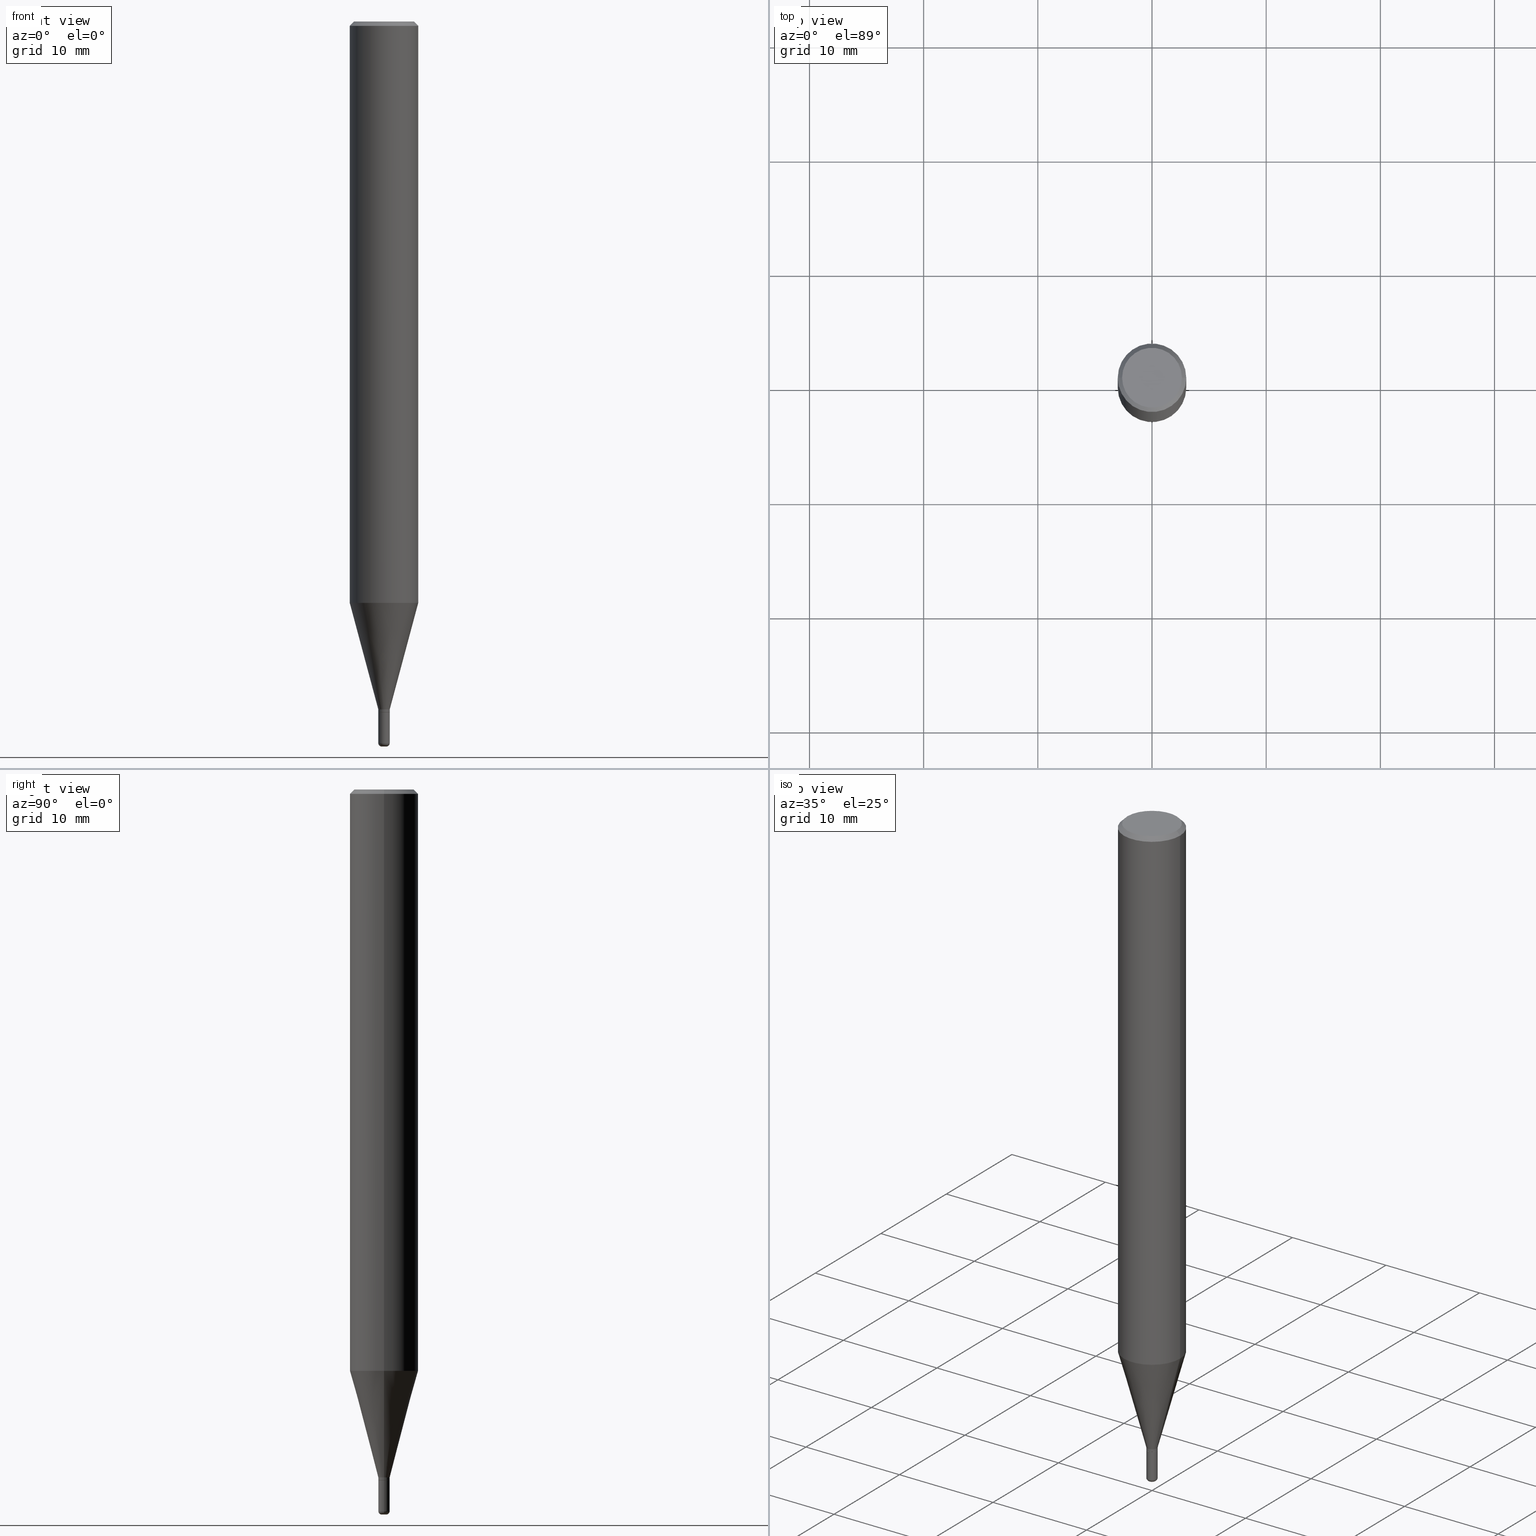
[diagram: canonical four-view strip — front | top / right | iso, engineering-drawing reading convention]
A machine part, canonical four-view strip (front | top / right | iso — engineering-drawing reading convention). The complete STEP part file that produces these views, byte-faithful:
ISO-10303-21;
HEADER;
FILE_DESCRIPTION (( 'STEP AP203' ),
    '1' );
FILE_NAME ('05327.STEP',
    '2024-02-29T19:36:34',
    ( '' ),
    ( '' ),
    'SwSTEP 2.0',
    'SolidWorks 2023',
    '' );
FILE_SCHEMA (( 'CONFIG_CONTROL_DESIGN' ));
ENDSEC;

DATA;
#1 = CC_DESIGN_SECURITY_CLASSIFICATION ( #506, ( #249 ) ) ;
#2 = ADVANCED_FACE ( 'NONE', ( #285 ), #448, .T. ) ;
#3 = DIRECTION ( 'NONE',  ( -2.445468806185136597E-29, 3.491481338843145583E-15, 1.000000000000000000 ) ) ;
#4 = LINE ( 'NONE', #131, #464 ) ;
#5 = AXIS2_PLACEMENT_3D ( 'NONE', #326, #3, #494 ) ;
#6 = EDGE_LOOP ( 'NONE', ( #104, #502 ) ) ;
#7 = CARTESIAN_POINT ( 'NONE',  ( 0.01919999999999998097, -8.450432284402065441E-15, -2.381899999999999906 ) ) ;
#8 = ADVANCED_FACE ( 'NONE', ( #48 ), #407, .T. ) ;
#9 = EDGE_LOOP ( 'NONE', ( #111, #498 ) ) ;
#10 = DIMENSIONAL_EXPONENTS ( 1.000000000000000000, 0.000000000000000000, 0.000000000000000000, 0.000000000000000000, 0.000000000000000000, 0.000000000000000000, 0.000000000000000000 ) ;
#11 = DIRECTION ( 'NONE',  ( 0.7071067811864253372, -2.468850131080976739E-15, 0.7071067811866698083 ) ) ;
#12 = APPLICATION_CONTEXT ( 'configuration controlled 3d designs of mechanical parts and assemblies' ) ;
#13 = CIRCLE ( 'NONE', #247, 0.01969999999999999876 ) ;
#14 = DIRECTION ( 'NONE',  ( -1.000000000000000000, 6.982962677686265922E-15, -4.876176775795935793E-29 ) ) ;
#15 = LINE ( 'NONE', #421, #270 ) ;
#16 = VECTOR ( 'NONE', #503, 39.37007874015748143 ) ;
#17 = LOCAL_TIME ( 14, 36, 34.00000000000000000, #400 ) ;
#18 = CARTESIAN_POINT ( 'NONE',  ( -0.007899999999999997302, -8.631370991184467837E-15, -2.488199999999999967 ) ) ;
#19 = DIRECTION ( 'NONE',  ( -2.445468806185136597E-29, 3.491481338843145583E-15, 1.000000000000000000 ) ) ;
#20 = ORIENTED_EDGE ( 'NONE', *, *, #487, .F. ) ;
#21 = ORIENTED_EDGE ( 'NONE', *, *, #26, .F. ) ;
#22 = FACE_OUTER_BOUND ( 'NONE', #266, .T. ) ;
#23 = UNCERTAINTY_MEASURE_WITH_UNIT (LENGTH_MEASURE( 1.000000000000000082E-05 ), #113, 'distance_accuracy_value', 'NONE');
#24 = DIRECTION ( 'NONE',  ( -1.000000000000000000, 7.105427357601039724E-15, 0.000000000000000000 ) ) ;
#25 = DIRECTION ( 'NONE',  ( -2.445468806185136597E-29, 3.491481338843145583E-15, 1.000000000000000000 ) ) ;
#26 = EDGE_CURVE ( 'NONE', #192, #330, #4, .T. ) ;
#27 = ORIENTED_EDGE ( 'NONE', *, *, #203, .F. ) ;
#28 = ORIENTED_EDGE ( 'NONE', *, *, #515, .F. ) ;
#29 = DIRECTION ( 'NONE',  ( 0.7071067811865483499, -7.319954787623257623E-15, -0.7071067811865466846 ) ) ;
#30 = ORIENTED_EDGE ( 'NONE', *, *, #186, .F. ) ;
#31 = DIRECTION ( 'NONE',  ( 1.000000000000000000, -6.982962677686258822E-15, 0.000000000000000000 ) ) ;
#32 = DIRECTION ( 'NONE',  ( -2.445468806185136597E-29, 3.491481338843145583E-15, 1.000000000000000000 ) ) ;
#33 = ORIENTED_EDGE ( 'NONE', *, *, #427, .F. ) ;
#34 = EDGE_LOOP ( 'NONE', ( #250, #20 ) ) ;
#35 = ORIENTED_EDGE ( 'NONE', *, *, #42, .F. ) ;
#36 = DATE_AND_TIME ( #314, #17 ) ;
#37 = CIRCLE ( 'NONE', #122, 0.01970000000000033877 ) ;
#38 = CC_DESIGN_APPROVAL ( #501, ( #249 ) ) ;
#39 = CARTESIAN_POINT ( 'NONE',  ( 0.01970000000000016877, -1.375643647504206195E-16, 9.606068248318075544E-31 ) ) ;
#40 = CALENDAR_DATE ( 2024, 29, 2 ) ;
#41 = ADVANCED_FACE ( 'NONE', ( #452 ), #319, .T. ) ;
#42 = EDGE_CURVE ( 'NONE', #142, #303, #482, .T. ) ;
#43 = DIRECTION ( 'NONE',  ( -2.445468806185136877E-29, 3.491481338843145188E-15, 1.000000000000000000 ) ) ;
#44 = PERSON_AND_ORGANIZATION_ROLE ( 'design_owner' ) ;
#45 = CONICAL_SURFACE ( 'NONE', #5, 0.01969999999999997101, 0.2617993877991492968 ) ;
#46 = ADVANCED_FACE ( 'NONE', ( #451 ), #255, .F. ) ;
#47 = APPROVAL_ROLE ( '' ) ;
#48 = FACE_OUTER_BOUND ( 'NONE', #415, .T. ) ;
#49 = CARTESIAN_POINT ( 'NONE',  ( 6.084815483549856310E-29, -8.687503867309514303E-15, -2.488199999999999967 ) ) ;
#50 = AXIS2_PLACEMENT_3D ( 'NONE', #253, #60, #339 ) ;
#51 = AXIS2_PLACEMENT_3D ( 'NONE', #350, #497, #137 ) ;
#52 = APPROVAL ( #267, 'UNSPECIFIED' ) ;
#53 = CARTESIAN_POINT ( 'NONE',  ( 3.668203209277694140E-31, -5.237222008264703607E-17, -0.01499999999999995781 ) ) ;
#54 = DIRECTION ( 'NONE',  ( 2.438088387897960049E-29, -3.491481338843145188E-15, -1.000000000000000000 ) ) ;
#55 = DIRECTION ( 'NONE',  ( 1.000000000000000000, -6.982962677686306154E-15, 4.883557194083126914E-29 ) ) ;
#56 = DIRECTION ( 'NONE',  ( -1.000000000000000000, 6.982962677686265922E-15, -4.876176775795935793E-29 ) ) ;
#57 = ORIENTED_EDGE ( 'NONE', *, *, #239, .T. ) ;
#58 = CIRCLE ( 'NONE', #417, 0.007900000000000000772 ) ;
#59 = CC_DESIGN_PERSON_AND_ORGANIZATION_ASSIGNMENT ( #308, #479, ( #249 ) ) ;
#60 = DIRECTION ( 'NONE',  ( -2.445468806185136597E-29, 3.491481338843145583E-15, 1.000000000000000000 ) ) ;
#61 = LOCAL_TIME ( 14, 36, 34.00000000000000000, #191 ) ;
#62 = DIRECTION ( 'NONE',  ( -2.445468806185136597E-29, 3.491481338843145583E-15, 1.000000000000000000 ) ) ;
#63 = CARTESIAN_POINT ( 'NONE',  ( -0.1180999999999999966, -2.686662453997805181E-15, -0.01499999999999995781 ) ) ;
#64 = ORIENTED_EDGE ( 'NONE', *, *, #203, .T. ) ;
#65 = ORIENTED_EDGE ( 'NONE', *, *, #469, .T. ) ;
#66 = CARTESIAN_POINT ( 'NONE',  ( 0.1180999999999999966, -8.246878922347480654E-16, 5.758764772215000440E-30 ) ) ;
#67 = DIRECTION ( 'NONE',  ( -0.7071067811864253372, 7.493145998869912398E-15, 0.7071067811866698083 ) ) ;
#68 = CARTESIAN_POINT ( 'NONE',  ( 5.823639415049284810E-29, -8.314613660321066941E-15, -2.381399999999999739 ) ) ;
#69 = CARTESIAN_POINT ( 'NONE',  ( 6.113672015462842613E-29, -8.728703347107866520E-15, -2.500000000000000444 ) ) ;
#70 = ORIENTED_EDGE ( 'NONE', *, *, #434, .T. ) ;
#71 = CARTESIAN_POINT ( 'NONE',  ( -0.1031000000000000111, 7.461295621107775452E-16, -5.126375781645864005E-30 ) ) ;
#72 = DIRECTION ( 'NONE',  ( 1.000000000000000000, -6.982962677686267499E-15, 4.876176775795936353E-29 ) ) ;
#73 = ORIENTED_EDGE ( 'NONE', *, *, #469, .F. ) ;
#74 = ORIENTED_EDGE ( 'NONE', *, *, #515, .T. ) ;
#75 = DIRECTION ( 'NONE',  ( 0.000000000000000000, 0.000000000000000000, 1.000000000000000000 ) ) ;
#76 = ORIENTED_EDGE ( 'NONE', *, *, #373, .T. ) ;
#77 = ORIENTED_EDGE ( 'NONE', *, *, #99, .F. ) ;
#78 = APPLICATION_PROTOCOL_DEFINITION ( 'international standard', 'config_control_design', 1994, #240 ) ;
#79 = DIRECTION ( 'NONE',  ( 1.000000000000000000, -6.982962677686266711E-15, 0.000000000000000000 ) ) ;
#80 = DIRECTION ( 'NONE',  ( -1.000000000000000000, 6.982962677686266711E-15, 0.000000000000000000 ) ) ;
#81 = EDGE_CURVE ( 'NONE', #210, #424, #241, .T. ) ;
#82 = COORDINATED_UNIVERSAL_TIME_OFFSET ( 5, 0, .BEHIND. ) ;
#83 = AXIS2_PLACEMENT_3D ( 'NONE', #512, #399, #80 ) ;
#84 = LINE ( 'NONE', #39, #304 ) ;
#85 = DIRECTION ( 'NONE',  ( 1.000000000000000000, 0.000000000000000000, 0.000000000000000000 ) ) ;
#86 = TOROIDAL_SURFACE ( 'NONE', #511, 0.007899999999999997302, 0.01180000000000033973 ) ;
#87 = AXIS2_PLACEMENT_3D ( 'NONE', #398, #311, #79 ) ;
#88 = DIRECTION ( 'NONE',  ( -2.445468806185136597E-29, 3.491481338843145583E-15, 1.000000000000000000 ) ) ;
#89 = APPROVAL_DATE_TIME ( #244, #199 ) ;
#90 = ADVANCED_FACE ( 'NONE', ( #345 ), #180, .T. ) ;
#91 = EDGE_CURVE ( 'NONE', #499, #301, #395, .T. ) ;
#92 = AXIS2_PLACEMENT_3D ( 'NONE', #248, #167, #204 ) ;
#93 = CIRCLE ( 'NONE', #386, 0.1180999999999999966 ) ;
#94 = VERTEX_POINT ( 'NONE', #462 ) ;
#95 = LINE ( 'NONE', #302, #403 ) ;
#96 = CYLINDRICAL_SURFACE ( 'NONE', #50, 0.01969999999999997448 ) ;
#97 = DIRECTION ( 'NONE',  ( 1.000000000000000000, -6.982962677686288799E-15, 0.000000000000000000 ) ) ;
#98 = ORIENTED_EDGE ( 'NONE', *, *, #450, .F. ) ;
#99 = EDGE_CURVE ( 'NONE', #499, #383, #229, .T. ) ;
#100 = VERTEX_POINT ( 'NONE', #63 ) ;
#101 = DIRECTION ( 'NONE',  ( -2.445468806185136597E-29, 3.491481338843145583E-15, 1.000000000000000000 ) ) ;
#102 = DIRECTION ( 'NONE',  ( 1.000000000000000000, -6.982962677686369262E-15, 0.000000000000000000 ) ) ;
#103 = CARTESIAN_POINT ( 'NONE',  ( 0.007899999999999997302, -8.742669272463236971E-15, -2.488199999999999967 ) ) ;
#104 = ORIENTED_EDGE ( 'NONE', *, *, #91, .F. ) ;
#105 = ORIENTED_EDGE ( 'NONE', *, *, #477, .T. ) ;
#106 = PLANE ( 'NONE',  #466 ) ;
#107 = LOCAL_TIME ( 14, 36, 34.00000000000000000, #82 ) ;
#108 = CARTESIAN_POINT ( 'NONE',  ( -0.01919999999999998097, -8.177285968550438833E-15, -2.381899999999999906 ) ) ;
#109 = EDGE_LOOP ( 'NONE', ( #98, #35, #105, #74 ) ) ;
#110 = DIRECTION ( 'NONE',  ( -2.445468806185136597E-29, 3.491481338843145583E-15, 1.000000000000000000 ) ) ;
#111 = ORIENTED_EDGE ( 'NONE', *, *, #42, .T. ) ;
#112 = EDGE_LOOP ( 'NONE', ( #297, #139, #57, #221 ) ) ;
#113 =( CONVERSION_BASED_UNIT ( 'INCH', #196 ) LENGTH_UNIT ( ) NAMED_UNIT ( #10 ) );
#114 = ADVANCED_FACE ( 'NONE', ( #146 ), #165, .F. ) ;
#115 = ORIENTED_EDGE ( 'NONE', *, *, #449, .T. ) ;
#116 = ORIENTED_EDGE ( 'NONE', *, *, #99, .T. ) ;
#117 = AXIS2_PLACEMENT_3D ( 'NONE', #53, #298, #340 ) ;
#118 = APPROVAL_STATUS ( 'not_yet_approved' ) ;
#119 = EDGE_CURVE ( 'NONE', #94, #383, #37, .T. ) ;
#120 = FACE_OUTER_BOUND ( 'NONE', #109, .T. ) ;
#121 = PERSON_AND_ORGANIZATION ( #342, #195 ) ;
#122 = AXIS2_PLACEMENT_3D ( 'NONE', #445, #211, #140 ) ;
#123 = AXIS2_PLACEMENT_3D ( 'NONE', #392, #75, #85 ) ;
#124 = CARTESIAN_POINT ( 'NONE',  ( 6.199188644380781470E-29, -8.606238667193129794E-15, -2.500000000000000000 ) ) ;
#125 = DIRECTION ( 'NONE',  ( 1.000000000000000000, -6.982962677686258822E-15, 0.000000000000000000 ) ) ;
#126 = APPROVAL_STATUS ( 'not_yet_approved' ) ;
#127 = VERTEX_POINT ( 'NONE', #384 ) ;
#128 = VERTEX_POINT ( 'NONE', #425 ) ;
#129 = AXIS2_PLACEMENT_3D ( 'NONE', #155, #321, #404 ) ;
#130 = DIRECTION ( 'NONE',  ( -2.438088387897960049E-29, 3.491481338843145188E-15, 1.000000000000000000 ) ) ;
#131 = CARTESIAN_POINT ( 'NONE',  ( 0.01969999999999997448, -1.375643647504192883E-16, 9.606068248317982708E-31 ) ) ;
#132 = PRODUCT_RELATED_PRODUCT_CATEGORY ( 'detail', '', ( #209 ) ) ;
#133 = DIRECTION ( 'NONE',  ( 0.2588190451025205729, 1.565188264969627490E-15, 0.9659258262890682012 ) ) ;
#134 = CIRCLE ( 'NONE', #205, 0.1180999999999999966 ) ;
#135 = DIRECTION ( 'NONE',  ( -2.445468806185136877E-29, 3.491481338843145188E-15, 1.000000000000000000 ) ) ;
#136 = EDGE_LOOP ( 'NONE', ( #307, #428, #27, #21 ) ) ;
#137 = DIRECTION ( 'NONE',  ( 1.000000000000000000, -6.982962677686266711E-15, 4.876176775795936353E-29 ) ) ;
#138 = ORIENTED_EDGE ( 'NONE', *, *, #119, .F. ) ;
#139 = ORIENTED_EDGE ( 'NONE', *, *, #450, .T. ) ;
#140 = DIRECTION ( 'NONE',  ( 1.000000000000000000, -6.982962677686306154E-15, 0.000000000000000000 ) ) ;
#141 = CYLINDRICAL_SURFACE ( 'NONE', #51, 0.1180999999999999966 ) ;
#142 = VERTEX_POINT ( 'NONE', #71 ) ;
#143 = AXIS2_PLACEMENT_3D ( 'NONE', #103, #258, #418 ) ;
#144 = AXIS2_PLACEMENT_3D ( 'NONE', #145, #62, #457 ) ;
#145 = CARTESIAN_POINT ( 'NONE',  ( 6.084815483549856310E-29, -8.687503867309514303E-15, -2.488199999999999967 ) ) ;
#146 = FACE_OUTER_BOUND ( 'NONE', #6, .T. ) ;
#147 = CC_DESIGN_PERSON_AND_ORGANIZATION_ASSIGNMENT ( #194, #44, ( #209 ) ) ;
#148 = CARTESIAN_POINT ( 'NONE',  ( 0.000000000000000000, 0.000000000000000000, 0.000000000000000000 ) ) ;
#149 = EDGE_LOOP ( 'NONE', ( #187, #76, #116, #138 ) ) ;
#150 = AXIS2_PLACEMENT_3D ( 'NONE', #379, #32, #423 ) ;
#151 =( LENGTH_UNIT ( ) NAMED_UNIT ( * ) SI_UNIT ( $, .METRE. ) );
#152 = CC_DESIGN_PERSON_AND_ORGANIZATION_ASSIGNMENT ( #315, #277, ( #249 ) ) ;
#153 = AXIS2_PLACEMENT_3D ( 'NONE', #372, #257, #416 ) ;
#154 = EDGE_LOOP ( 'NONE', ( #228, #65, #309, #30 ) ) ;
#155 = CARTESIAN_POINT ( 'NONE',  ( 5.824862149452377611E-29, -8.316359400990489234E-15, -2.381899999999999906 ) ) ;
#156 = CARTESIAN_POINT ( 'NONE',  ( -0.01969999999999997448, 1.399769189447395553E-16, -9.690302127802151991E-31 ) ) ;
#157 = CARTESIAN_POINT ( 'NONE',  ( 0.01969999999999997101, -8.419008952352476799E-15, -2.371900000000000119 ) ) ;
#158 = DATE_TIME_ROLE ( 'classification_date' ) ;
#159 = AXIS2_PLACEMENT_3D ( 'NONE', #49, #161, #325 ) ;
#160 = AXIS2_PLACEMENT_3D ( 'NONE', #124, #442, #318 ) ;
#161 = DIRECTION ( 'NONE',  ( -2.445468806185136597E-29, 3.491481338843145583E-15, 1.000000000000000000 ) ) ;
#162 = ADVANCED_FACE ( 'NONE', ( #168 ), #106, .F. ) ;
#163 = CARTESIAN_POINT ( 'NONE',  ( 1.375643647504776887E-16, 0.01969999999999168250, -2.381899999999999906 ) ) ;
#164 = PRODUCT_DEFINITION_SHAPE ( 'NONE', 'NONE',  #243 ) ;
#165 = PLANE ( 'NONE',  #160 ) ;
#166 = CARTESIAN_POINT ( 'NONE',  ( -0.01969999999999998141, -8.174636741376326844E-15, -2.381399999999999739 ) ) ;
#167 = DIRECTION ( 'NONE',  ( -2.445468806185136597E-29, 3.491481338843145583E-15, 1.000000000000000000 ) ) ;
#168 = FACE_OUTER_BOUND ( 'NONE', #9, .T. ) ;
#169 = DIRECTION ( 'NONE',  ( 1.000000000000000000, -6.982962677686265133E-15, 0.000000000000000000 ) ) ;
#170 = ORIENTED_EDGE ( 'NONE', *, *, #185, .F. ) ;
#171 = AXIS2_PLACEMENT_3D ( 'NONE', #341, #25, #215 ) ;
#172 = CIRCLE ( 'NONE', #476, 0.01919999999999998097 ) ;
#173 = LINE ( 'NONE', #331, #489 ) ;
#174 = DIRECTION ( 'NONE',  ( 1.000000000000000000, -6.982962677686278543E-15, 0.000000000000000000 ) ) ;
#175 = DESIGN_CONTEXT ( 'detailed design', #240, 'design' ) ;
#176 = LINE ( 'NONE', #336, #402 ) ;
#177 = ORIENTED_EDGE ( 'NONE', *, *, #352, .F. ) ;
#178 = ORIENTED_EDGE ( 'NONE', *, *, #281, .F. ) ;
#179 = CARTESIAN_POINT ( 'NONE',  ( 6.084815483549856310E-29, -8.687503867309514303E-15, -2.488199999999999967 ) ) ;
#180 = CYLINDRICAL_SURFACE ( 'NONE', #504, 0.01970000000000016877 ) ;
#181 = ORIENTED_EDGE ( 'NONE', *, *, #185, .T. ) ;
#182 = ORIENTED_EDGE ( 'NONE', *, *, #487, .T. ) ;
#183 = DIRECTION ( 'NONE',  ( -2.445468806185136597E-29, 3.491481338843145583E-15, 1.000000000000000000 ) ) ;
#184 = EDGE_LOOP ( 'NONE', ( #73, #226, #432, #28 ) ) ;
#185 = EDGE_CURVE ( 'NONE', #94, #210, #173, .T. ) ;
#186 = EDGE_CURVE ( 'NONE', #474, #127, #222, .T. ) ;
#187 = ORIENTED_EDGE ( 'NONE', *, *, #410, .F. ) ;
#188 = CC_DESIGN_APPROVAL ( #52, ( #243 ) ) ;
#189 = FACE_OUTER_BOUND ( 'NONE', #463, .T. ) ;
#190 = ORIENTED_EDGE ( 'NONE', *, *, #327, .T. ) ;
#191 = COORDINATED_UNIVERSAL_TIME_OFFSET ( 5, 0, .BEHIND. ) ;
#192 = VERTEX_POINT ( 'NONE', #381 ) ;
#193 = EDGE_CURVE ( 'NONE', #424, #210, #13, .T. ) ;
#194 = PERSON_AND_ORGANIZATION ( #342, #195 ) ;
#195 = ORGANIZATION ( 'UNSPECIFIED', 'UNSPECIFIED', '' ) ;
#196 = LENGTH_MEASURE_WITH_UNIT ( LENGTH_MEASURE( 0.02539999999999999897 ), #151 );
#197 = CARTESIAN_POINT ( 'NONE',  ( -0.007900000000000000772, -8.610048709673797919E-15, -2.500000000000000444 ) ) ;
#198 = DATE_AND_TIME ( #272, #61 ) ;
#199 = APPROVAL ( #126, 'UNSPECIFIED' ) ;
#200 = CONICAL_SURFACE ( 'NONE', #117, 0.1180999999999999966, 0.7853981633974495002 ) ;
#201 = CALENDAR_DATE ( 2024, 29, 2 ) ;
#202 = EDGE_LOOP ( 'NONE', ( #429, #182, #115, #265 ) ) ;
#203 = EDGE_CURVE ( 'NONE', #330, #368, #446, .T. ) ;
#204 = DIRECTION ( 'NONE',  ( 1.000000000000000000, -6.982962677686258822E-15, 0.000000000000000000 ) ) ;
#205 = AXIS2_PLACEMENT_3D ( 'NONE', #238, #518, #397 ) ;
#206 = DIRECTION ( 'NONE',  ( -2.445468806185136877E-29, 3.491481338843145188E-15, 1.000000000000000000 ) ) ;
#207 = AXIS2_PLACEMENT_3D ( 'NONE', #148, #513, #231 ) ;
#208 = CARTESIAN_POINT ( 'NONE',  ( 5.800407461390526066E-29, -8.281444587602057585E-15, -2.371900000000000119 ) ) ;
#209 = PRODUCT ( '05327', '05327', '', ( #271 ) ) ;
#210 = VERTEX_POINT ( 'NONE', #496 ) ;
#211 = DIRECTION ( 'NONE',  ( -2.445468806185136597E-29, 3.491481338843145583E-15, 1.000000000000000000 ) ) ;
#212 = CARTESIAN_POINT ( 'NONE',  ( 6.113672015462842613E-29, -8.728703347107866520E-15, -2.500000000000000444 ) ) ;
#213 = DIRECTION ( 'NONE',  ( 1.000000000000000000, -6.982962677686266711E-15, 0.000000000000000000 ) ) ;
#214 = DIRECTION ( 'NONE',  ( 7.105427357601001859E-15, 1.000000000000000000, -3.491481338843145583E-15 ) ) ;
#215 = DIRECTION ( 'NONE',  ( 1.000000000000000000, -6.982962677686278543E-15, 0.000000000000000000 ) ) ;
#216 = AXIS2_PLACEMENT_3D ( 'NONE', #219, #412, #213 ) ;
#217 = CIRCLE ( 'NONE', #388, 0.01969999999999998141 ) ;
#218 = ORIENTED_EDGE ( 'NONE', *, *, #280, .F. ) ;
#219 = CARTESIAN_POINT ( 'NONE',  ( 3.668203209277694140E-31, -5.237222008264703607E-17, -0.01499999999999995781 ) ) ;
#220 = FACE_OUTER_BOUND ( 'NONE', #136, .T. ) ;
#221 = ORIENTED_EDGE ( 'NONE', *, *, #477, .F. ) ;
#222 = LINE ( 'NONE', #66, #363 ) ;
#223 = CARTESIAN_POINT ( 'NONE',  ( 0.01970000000000033877, -8.825068232059938251E-15, -2.488199999999999967 ) ) ;
#224 = DIRECTION ( 'NONE',  ( -2.445468806185136597E-29, 3.491481338843145583E-15, 1.000000000000000000 ) ) ;
#225 = CC_DESIGN_DATE_AND_TIME_ASSIGNMENT ( #36, #478, ( #243 ) ) ;
#226 = ORIENTED_EDGE ( 'NONE', *, *, #276, .T. ) ;
#227 = CARTESIAN_POINT ( 'NONE',  ( 0.1180999999999999966, -7.823942522013067545E-15, -2.004666200535222487 ) ) ;
#228 = ORIENTED_EDGE ( 'NONE', *, *, #427, .T. ) ;
#229 = CIRCLE ( 'NONE', #143, 0.01180000000000034147 ) ;
#230 = ADVANCED_FACE ( 'NONE', ( #458 ), #96, .T. ) ;
#231 = DIRECTION ( 'NONE',  ( 1.000000000000000000, -6.982962677686265922E-15, 4.876176775795935232E-29 ) ) ;
#232 = EDGE_LOOP ( 'NONE', ( #64, #296, #33, #268 ) ) ;
#233 = CALENDAR_DATE ( 2024, 29, 2 ) ;
#234 =( NAMED_UNIT ( * ) SI_UNIT ( $, .STERADIAN. ) SOLID_ANGLE_UNIT ( ) );
#235 = CONICAL_SURFACE ( 'NONE', #83, 0.1180999999999999966, 0.7853981633974495002 ) ;
#236 = DIRECTION ( 'NONE',  ( -0.2588190451025205729, 5.211531920934544731E-15, 0.9659258262890682012 ) ) ;
#237 = DATE_AND_TIME ( #233, #283 ) ;
#238 = CARTESIAN_POINT ( 'NONE',  ( 4.902348660222563893E-29, -6.999254629778320071E-15, -2.004666200535222487 ) ) ;
#239 = EDGE_CURVE ( 'NONE', #127, #100, #347, .T. ) ;
#240 = APPLICATION_CONTEXT ( 'configuration controlled 3d designs of mechanical parts and assemblies' ) ;
#241 = CIRCLE ( 'NONE', #171, 0.01969999999999999876 ) ;
#242 = MANIFOLD_SOLID_BREP ( 'Body-Move/Copy2[2]', #401 ) ;
#243 = PRODUCT_DEFINITION ( 'UNKNOWN', '', #249, #175 ) ;
#244 = DATE_AND_TIME ( #201, #484 ) ;
#245 = DIRECTION ( 'NONE',  ( 1.000000000000000000, -6.982962677686266711E-15, 4.876176775795936353E-29 ) ) ;
#246 = DIRECTION ( 'NONE',  ( -2.445468806185136597E-29, 3.491481338843145583E-15, 1.000000000000000000 ) ) ;
#247 = AXIS2_PLACEMENT_3D ( 'NONE', #294, #101, #174 ) ;
#248 = CARTESIAN_POINT ( 'NONE',  ( 5.824862149452377611E-29, -8.316359400990489234E-15, -2.381899999999999906 ) ) ;
#249 = PRODUCT_DEFINITION_FORMATION_WITH_SPECIFIED_SOURCE ( 'ANY', '', #209, .NOT_KNOWN. ) ;
#250 = ORIENTED_EDGE ( 'NONE', *, *, #327, .F. ) ;
#251 = CARTESIAN_POINT ( 'NONE',  ( -0.1180999999999999966, 7.723156721521010848E-16, -0.01499999999999995781 ) ) ;
#252 = DIRECTION ( 'NONE',  ( -2.445468806185136877E-29, 3.491481338843145188E-15, 1.000000000000000000 ) ) ;
#253 = CARTESIAN_POINT ( 'NONE',  ( 0.000000000000000000, 0.000000000000000000, 0.000000000000000000 ) ) ;
#254 = CYLINDRICAL_SURFACE ( 'NONE', #282, 0.01969999999999997448 ) ;
#255 = PLANE ( 'NONE',  #455 ) ;
#256 = ORIENTED_EDGE ( 'NONE', *, *, #337, .T. ) ;
#257 = DIRECTION ( 'NONE',  ( -2.445468806185136597E-29, 3.491481338843145583E-15, 1.000000000000000000 ) ) ;
#258 = DIRECTION ( 'NONE',  ( -6.982962677686266711E-15, -1.000000000000000000, 3.491481338843145583E-15 ) ) ;
#259 = CIRCLE ( 'NONE', #293, 0.01180000000000034147 ) ;
#260 = ORIENTED_EDGE ( 'NONE', *, *, #410, .T. ) ;
#261 = EDGE_CURVE ( 'NONE', #471, #351, #15, .T. ) ;
#262 = ADVANCED_FACE ( 'NONE', ( #22 ), #491, .T. ) ;
#263 = FACE_OUTER_BOUND ( 'NONE', #112, .T. ) ;
#264 = DIRECTION ( 'NONE',  ( -2.445468806185136597E-29, 3.491481338843145583E-15, 1.000000000000000000 ) ) ;
#265 = ORIENTED_EDGE ( 'NONE', *, *, #486, .F. ) ;
#266 = EDGE_LOOP ( 'NONE', ( #377, #181, #509, #178 ) ) ;
#267 = APPROVAL_STATUS ( 'not_yet_approved' ) ;
#268 = ORIENTED_EDGE ( 'NONE', *, *, #337, .F. ) ;
#269 = ORIENTED_EDGE ( 'NONE', *, *, #449, .F. ) ;
#270 = VECTOR ( 'NONE', #67, 39.37007874015748143 ) ;
#271 = MECHANICAL_CONTEXT ( 'NONE', #12, 'mechanical' ) ;
#272 = CALENDAR_DATE ( 2024, 29, 2 ) ;
#273 = DIRECTION ( 'NONE',  ( -2.445468806185136597E-29, 3.491481338843145583E-15, 1.000000000000000000 ) ) ;
#274 = PERSON_AND_ORGANIZATION ( #342, #195 ) ;
#275 = AXIS2_PLACEMENT_3D ( 'NONE', #69, #224, #505 ) ;
#276 = EDGE_CURVE ( 'NONE', #128, #474, #134, .T. ) ;
#277 = PERSON_AND_ORGANIZATION_ROLE ( 'creator' ) ;
#278 = EDGE_CURVE ( 'NONE', #192, #351, #375, .T. ) ;
#279 = DIRECTION ( 'NONE',  ( 1.000000000000000000, -6.982962677686265922E-15, 4.876176775795935793E-29 ) ) ;
#280 = EDGE_CURVE ( 'NONE', #368, #128, #441, .T. ) ;
#281 = EDGE_CURVE ( 'NONE', #383, #424, #84, .T. ) ;
#282 = AXIS2_PLACEMENT_3D ( 'NONE', #411, #183, #72 ) ;
#283 = LOCAL_TIME ( 14, 36, 34.00000000000000000, #355 ) ;
#284 = ORIENTED_EDGE ( 'NONE', *, *, #486, .T. ) ;
#285 = FACE_OUTER_BOUND ( 'NONE', #184, .T. ) ;
#286 = CARTESIAN_POINT ( 'NONE',  ( 0.000000000000000000, 0.000000000000000000, 0.000000000000000000 ) ) ;
#287 = CARTESIAN_POINT ( 'NONE',  ( 0.01969999999999997101, -8.419008952352476799E-15, -2.371900000000000119 ) ) ;
#288 = ORIENTED_EDGE ( 'NONE', *, *, #261, .T. ) ;
#289 = PERSON_AND_ORGANIZATION ( #342, #195 ) ;
#290 = DIRECTION ( 'NONE',  ( -2.445468806185136597E-29, 3.491481338843145583E-15, 1.000000000000000000 ) ) ;
#291 = ADVANCED_FACE ( 'NONE', ( #516 ), #483, .T. ) ;
#292 = FACE_OUTER_BOUND ( 'NONE', #232, .T. ) ;
#293 = AXIS2_PLACEMENT_3D ( 'NONE', #18, #214, #24 ) ;
#294 = CARTESIAN_POINT ( 'NONE',  ( 5.824862149452377611E-29, -8.316359400990489234E-15, -2.381899999999999906 ) ) ;
#295 = CARTESIAN_POINT ( 'NONE',  ( 5.800407461390526066E-29, -8.281444587602057585E-15, -2.371900000000000119 ) ) ;
#296 = ORIENTED_EDGE ( 'NONE', *, *, #280, .T. ) ;
#297 = ORIENTED_EDGE ( 'NONE', *, *, #514, .F. ) ;
#298 = DIRECTION ( 'NONE',  ( 2.445468806185136597E-29, -3.491481338843145583E-15, -1.000000000000000000 ) ) ;
#299 = DIRECTION ( 'NONE',  ( 1.000000000000000000, -6.982962677686265922E-15, 4.876176775795935793E-29 ) ) ;
#300 = ADVANCED_FACE ( 'NONE', ( #120 ), #235, .T. ) ;
#301 = VERTEX_POINT ( 'NONE', #197 ) ;
#302 = CARTESIAN_POINT ( 'NONE',  ( -0.1180999999999999966, 8.391509709326782957E-16, -5.809262341591043784E-30 ) ) ;
#303 = VERTEX_POINT ( 'NONE', #361 ) ;
#304 = VECTOR ( 'NONE', #43, 39.37007874015748143 ) ;
#305 = EDGE_LOOP ( 'NONE', ( #190, #288, #310, #269 ) ) ;
#306 = DIRECTION ( 'NONE',  ( 1.000000000000000000, -6.982962677686284854E-15, 0.000000000000000000 ) ) ;
#307 = ORIENTED_EDGE ( 'NONE', *, *, #278, .T. ) ;
#308 = PERSON_AND_ORGANIZATION ( #342, #195 ) ;
#309 = ORIENTED_EDGE ( 'NONE', *, *, #239, .F. ) ;
#310 = ORIENTED_EDGE ( 'NONE', *, *, #278, .F. ) ;
#311 = DIRECTION ( 'NONE',  ( -2.445468806185136597E-29, 3.491481338843145583E-15, 1.000000000000000000 ) ) ;
#312 = AXIS2_PLACEMENT_3D ( 'NONE', #485, #273, #480 ) ;
#313 = CIRCLE ( 'NONE', #87, 0.1180999999999999966 ) ;
#314 = CALENDAR_DATE ( 2024, 29, 2 ) ;
#315 = PERSON_AND_ORGANIZATION ( #342, #195 ) ;
#316 = ADVANCED_FACE ( 'NONE', ( #292 ), #45, .T. ) ;
#317 = DIRECTION ( 'NONE',  ( 1.000000000000000000, -6.982962677686265922E-15, 4.876176775795935793E-29 ) ) ;
#318 = DIRECTION ( 'NONE',  ( 1.000000000000000000, -6.982962677686265922E-15, 4.876176775795935793E-29 ) ) ;
#319 = CONICAL_SURFACE ( 'NONE', #92, 0.01919999999999998097, 0.7853981633972754173 ) ;
#320 = CARTESIAN_POINT ( 'NONE',  ( -0.01969999999999997101, -8.141467668657319065E-15, -2.371900000000000119 ) ) ;
#321 = DIRECTION ( 'NONE',  ( -2.445468806185136597E-29, 3.491481338843145583E-15, 1.000000000000000000 ) ) ;
#322 = SHAPE_DEFINITION_REPRESENTATION ( #164, #353 ) ;
#323 = VECTOR ( 'NONE', #236, 39.37007874015748854 ) ;
#324 = CIRCLE ( 'NONE', #144, 0.01970000000000033877 ) ;
#325 = DIRECTION ( 'NONE',  ( 1.000000000000000000, -6.982962677686306154E-15, 4.883557194083126914E-29 ) ) ;
#326 = CARTESIAN_POINT ( 'NONE',  ( 5.800407461390526066E-29, -8.281444587602057585E-15, -2.371900000000000119 ) ) ;
#327 = EDGE_CURVE ( 'NONE', #343, #471, #334, .T. ) ;
#328 = ADVANCED_FACE ( 'NONE', ( #456 ), #492, .F. ) ;
#329 = LINE ( 'NONE', #156, #16 ) ;
#330 = VERTEX_POINT ( 'NONE', #157 ) ;
#331 = CARTESIAN_POINT ( 'NONE',  ( -0.01970000000000016877, 1.399769189447409358E-16, -9.690302127802246579E-31 ) ) ;
#332 = DIRECTION ( 'NONE',  ( 1.000000000000000000, -6.982962677686288799E-15, 0.000000000000000000 ) ) ;
#333 = FACE_OUTER_BOUND ( 'NONE', #149, .T. ) ;
#334 = CIRCLE ( 'NONE', #129, 0.01919999999999998097 ) ;
#335 = CARTESIAN_POINT ( 'NONE',  ( 7.199434520694541042E-16, 0.1031000000000000111, -3.599717260347282847E-16 ) ) ;
#336 = CARTESIAN_POINT ( 'NONE',  ( 0.01919999999999998097, -8.450432284402065441E-15, -2.381899999999999906 ) ) ;
#337 = EDGE_CURVE ( 'NONE', #330, #474, #370, .T. ) ;
#338 = ORIENTED_EDGE ( 'NONE', *, *, #434, .F. ) ;
#339 = DIRECTION ( 'NONE',  ( 1.000000000000000000, -6.982962677686267499E-15, 4.876176775795936353E-29 ) ) ;
#340 = DIRECTION ( 'NONE',  ( -1.000000000000000000, 6.982962677686266711E-15, 0.000000000000000000 ) ) ;
#341 = CARTESIAN_POINT ( 'NONE',  ( 5.824862149452377611E-29, -8.316359400990489234E-15, -2.381899999999999906 ) ) ;
#342 = PERSON ( 'UNSPECIFIED', 'UNSPECIFIED', 'UNSPECIFIED', ('UNSPECIFIED'), ('UNSPECIFIED'), ('UNSPECIFIED') ) ;
#343 = VERTEX_POINT ( 'NONE', #7 ) ;
#344 = FACE_OUTER_BOUND ( 'NONE', #154, .T. ) ;
#345 = FACE_OUTER_BOUND ( 'NONE', #349, .T. ) ;
#346 = EDGE_LOOP ( 'NONE', ( #177, #284, #380, #338 ) ) ;
#347 = CIRCLE ( 'NONE', #216, 0.1180999999999999966 ) ;
#348 = VECTOR ( 'NONE', #422, 39.37007874015748143 ) ;
#349 = EDGE_LOOP ( 'NONE', ( #170, #454, #473, #391 ) ) ;
#350 = CARTESIAN_POINT ( 'NONE',  ( 0.000000000000000000, 0.000000000000000000, 0.000000000000000000 ) ) ;
#351 = VERTEX_POINT ( 'NONE', #166 ) ;
#352 = EDGE_CURVE ( 'NONE', #351, #368, #329, .T. ) ;
#353 = ADVANCED_BREP_SHAPE_REPRESENTATION ( '05327', ( #405, #242, #123 ), #367 ) ;
#354 = EDGE_LOOP ( 'NONE', ( #420, #371 ) ) ;
#355 = COORDINATED_UNIVERSAL_TIME_OFFSET ( 5, 0, .BEHIND. ) ;
#356 = AXIS2_PLACEMENT_3D ( 'NONE', #365, #130, #279 ) ;
#357 = CC_DESIGN_APPROVAL ( #199, ( #506 ) ) ;
#358 = PERSON_AND_ORGANIZATION ( #342, #195 ) ;
#359 = ADVANCED_FACE ( 'NONE', ( #333 ), #86, .T. ) ;
#360 = CARTESIAN_POINT ( 'NONE',  ( 5.824862149452377611E-29, -8.316359400990489234E-15, -2.381899999999999906 ) ) ;
#361 = CARTESIAN_POINT ( 'NONE',  ( 0.1031000000000000111, -7.849571885948548761E-16, 5.261941714946591942E-30 ) ) ;
#362 = AXIS2_PLACEMENT_3D ( 'NONE', #493, #88, #245 ) ;
#363 = VECTOR ( 'NONE', #252, 39.37007874015748143 ) ;
#364 = DATE_AND_TIME ( #40, #107 ) ;
#365 = CARTESIAN_POINT ( 'NONE',  ( 5.824862149452377611E-29, -8.316359400990489234E-15, -2.381899999999999906 ) ) ;
#366 = CIRCLE ( 'NONE', #153, 0.01969999999999997101 ) ;
#367 =( GEOMETRIC_REPRESENTATION_CONTEXT ( 3 ) GLOBAL_UNCERTAINTY_ASSIGNED_CONTEXT ( ( #23 ) ) GLOBAL_UNIT_ASSIGNED_CONTEXT ( ( #113, #433, #234 ) ) REPRESENTATION_CONTEXT ( 'NONE', 'WORKASPACE' ) );
#368 = VERTEX_POINT ( 'NONE', #413 ) ;
#369 = ADVANCED_FACE ( 'NONE', ( #220 ), #254, .T. ) ;
#370 = LINE ( 'NONE', #287, #431 ) ;
#371 = ORIENTED_EDGE ( 'NONE', *, *, #81, .T. ) ;
#372 = CARTESIAN_POINT ( 'NONE',  ( 5.800407461390526066E-29, -8.281444587602057585E-15, -2.371900000000000119 ) ) ;
#373 = EDGE_CURVE ( 'NONE', #301, #499, #58, .T. ) ;
#374 = CARTESIAN_POINT ( 'NONE',  ( 0.01969999999999999876, -8.453923765740908448E-15, -2.381899999999999906 ) ) ;
#375 = CIRCLE ( 'NONE', #312, 0.01969999999999998141 ) ;
#376 = CARTESIAN_POINT ( 'NONE',  ( 0.000000000000000000, 0.000000000000000000, 0.000000000000000000 ) ) ;
#377 = ORIENTED_EDGE ( 'NONE', *, *, #468, .T. ) ;
#378 = DIRECTION ( 'NONE',  ( -2.445468806185136597E-29, 3.491481338843145583E-15, 1.000000000000000000 ) ) ;
#379 = CARTESIAN_POINT ( 'NONE',  ( 0.000000000000000000, 0.000000000000000000, 0.000000000000000000 ) ) ;
#380 = ORIENTED_EDGE ( 'NONE', *, *, #26, .T. ) ;
#381 = CARTESIAN_POINT ( 'NONE',  ( 0.01969999999999998141, -8.452178025071486156E-15, -2.381399999999999739 ) ) ;
#382 = LINE ( 'NONE', #500, #409 ) ;
#383 = VERTEX_POINT ( 'NONE', #223 ) ;
#384 = CARTESIAN_POINT ( 'NONE',  ( 0.1180999999999999966, -8.770601123173951446E-16, -0.01499999999999995781 ) ) ;
#385 = DIRECTION ( 'NONE',  ( -2.445468806185136597E-29, 3.491481338843145583E-15, 1.000000000000000000 ) ) ;
#386 = AXIS2_PLACEMENT_3D ( 'NONE', #495, #264, #169 ) ;
#387 = CC_DESIGN_DATE_AND_TIME_ASSIGNMENT ( #364, #158, ( #506 ) ) ;
#388 = AXIS2_PLACEMENT_3D ( 'NONE', #68, #385, #306 ) ;
#389 = ORIENTED_EDGE ( 'NONE', *, *, #468, .F. ) ;
#390 = PERSON_AND_ORGANIZATION ( #342, #195 ) ;
#391 = ORIENTED_EDGE ( 'NONE', *, *, #81, .F. ) ;
#392 = CARTESIAN_POINT ( 'NONE',  ( 0.000000000000000000, 0.000000000000000000, 0.000000000000000000 ) ) ;
#393 = CC_DESIGN_PERSON_AND_ORGANIZATION_ASSIGNMENT ( #274, #438, ( #506 ) ) ;
#394 = APPROVAL_ROLE ( '' ) ;
#395 = CIRCLE ( 'NONE', #275, 0.007900000000000000772 ) ;
#396 = APPROVAL_PERSON_ORGANIZATION ( #289, #199, #47 ) ;
#397 = DIRECTION ( 'NONE',  ( 1.000000000000000000, -6.982962677686265133E-15, 0.000000000000000000 ) ) ;
#398 = CARTESIAN_POINT ( 'NONE',  ( 3.668203209277694140E-31, -5.237222008264703607E-17, -0.01499999999999995781 ) ) ;
#399 = DIRECTION ( 'NONE',  ( 2.445468806185136597E-29, -3.491481338843145583E-15, -1.000000000000000000 ) ) ;
#400 = COORDINATED_UNIVERSAL_TIME_OFFSET ( 5, 0, .BEHIND. ) ;
#401 = CLOSED_SHELL ( 'NONE', ( #369, #291, #436, #453, #316, #444, #2, #300, #162, #328, #41, #230 ) ) ;
#402 = VECTOR ( 'NONE', #11, 39.37007874015748143 ) ;
#403 = VECTOR ( 'NONE', #465, 39.37007874015748143 ) ;
#404 = DIRECTION ( 'NONE',  ( 1.000000000000000000, -6.982962677686258822E-15, 0.000000000000000000 ) ) ;
#405 = MANIFOLD_SOLID_BREP ( 'Body-Move/Copy2[1]', #488 ) ;
#406 = CC_DESIGN_PERSON_AND_ORGANIZATION_ASSIGNMENT ( #358, #430, ( #243 ) ) ;
#407 = TOROIDAL_SURFACE ( 'NONE', #159, 0.007899999999999997302, 0.01180000000000033973 ) ;
#408 = AXIS2_PLACEMENT_3D ( 'NONE', #360, #437, #125 ) ;
#409 = VECTOR ( 'NONE', #29, 39.37007874015748143 ) ;
#410 = EDGE_CURVE ( 'NONE', #301, #94, #259, .T. ) ;
#411 = CARTESIAN_POINT ( 'NONE',  ( 0.000000000000000000, 0.000000000000000000, 0.000000000000000000 ) ) ;
#412 = DIRECTION ( 'NONE',  ( -2.445468806185136597E-29, 3.491481338843145583E-15, 1.000000000000000000 ) ) ;
#413 = CARTESIAN_POINT ( 'NONE',  ( -0.01969999999999997101, -7.150785663751480469E-15, -2.371900000000000119 ) ) ;
#414 = DIRECTION ( 'NONE',  ( 2.438088387897960049E-29, -3.491481338843145188E-15, -1.000000000000000000 ) ) ;
#415 = EDGE_LOOP ( 'NONE', ( #507, #260, #389, #77 ) ) ;
#416 = DIRECTION ( 'NONE',  ( 1.000000000000000000, -6.982962677686288799E-15, 0.000000000000000000 ) ) ;
#417 = AXIS2_PLACEMENT_3D ( 'NONE', #212, #461, #102 ) ;
#418 = DIRECTION ( 'NONE',  ( 1.000000000000000000, -6.982962677686344808E-15, 0.000000000000000000 ) ) ;
#419 = CIRCLE ( 'NONE', #207, 0.1031000000000000111 ) ;
#420 = ORIENTED_EDGE ( 'NONE', *, *, #193, .T. ) ;
#421 = CARTESIAN_POINT ( 'NONE',  ( -0.01919999999999998097, -8.179935195724549246E-15, -2.381899999999999906 ) ) ;
#422 = DIRECTION ( 'NONE',  ( -0.7071067811865483499, 2.468850131082265738E-15, -0.7071067811865466846 ) ) ;
#423 = DIRECTION ( 'NONE',  ( 1.000000000000000000, -6.982962677686265922E-15, 4.876176775795935232E-29 ) ) ;
#424 = VERTEX_POINT ( 'NONE', #374 ) ;
#425 = CARTESIAN_POINT ( 'NONE',  ( -0.1180999999999999966, -6.160103658845641874E-15, -2.004666200535222487 ) ) ;
#426 = LINE ( 'NONE', #251, #348 ) ;
#427 = EDGE_CURVE ( 'NONE', #474, #128, #93, .T. ) ;
#428 = ORIENTED_EDGE ( 'NONE', *, *, #352, .T. ) ;
#429 = ORIENTED_EDGE ( 'NONE', *, *, #261, .F. ) ;
#430 = PERSON_AND_ORGANIZATION_ROLE ( 'creator' ) ;
#431 = VECTOR ( 'NONE', #133, 39.37007874015748854 ) ;
#432 = ORIENTED_EDGE ( 'NONE', *, *, #186, .T. ) ;
#433 =( NAMED_UNIT ( * ) PLANE_ANGLE_UNIT ( ) SI_UNIT ( $, .RADIAN. ) );
#434 = EDGE_CURVE ( 'NONE', #368, #330, #366, .T. ) ;
#435 = APPROVAL_DATE_TIME ( #198, #501 ) ;
#436 = ADVANCED_FACE ( 'NONE', ( #263 ), #200, .T. ) ;
#437 = DIRECTION ( 'NONE',  ( -2.445468806185136597E-29, 3.491481338843145583E-15, 1.000000000000000000 ) ) ;
#438 = PERSON_AND_ORGANIZATION_ROLE ( 'classification_officer' ) ;
#439 = AXIS2_PLACEMENT_3D ( 'NONE', #208, #290, #332 ) ;
#440 = AXIS2_PLACEMENT_3D ( 'NONE', #295, #459, #97 ) ;
#441 = LINE ( 'NONE', #320, #323 ) ;
#442 = DIRECTION ( 'NONE',  ( -2.438088387897960049E-29, 3.491481338843145188E-15, 1.000000000000000000 ) ) ;
#443 = COORDINATED_UNIVERSAL_TIME_OFFSET ( 5, 0, .BEHIND. ) ;
#444 = ADVANCED_FACE ( 'NONE', ( #189 ), #447, .T. ) ;
#445 = CARTESIAN_POINT ( 'NONE',  ( 6.084815483549856310E-29, -8.687503867309514303E-15, -2.488199999999999967 ) ) ;
#446 = CIRCLE ( 'NONE', #439, 0.01969999999999997101 ) ;
#447 = CONICAL_SURFACE ( 'NONE', #440, 0.01969999999999997101, 0.2617993877991492968 ) ;
#448 = CYLINDRICAL_SURFACE ( 'NONE', #362, 0.1180999999999999966 ) ;
#449 = EDGE_CURVE ( 'NONE', #343, #192, #176, .T. ) ;
#450 = EDGE_CURVE ( 'NONE', #303, #127, #382, .T. ) ;
#451 = FACE_OUTER_BOUND ( 'NONE', #354, .T. ) ;
#452 = FACE_OUTER_BOUND ( 'NONE', #202, .T. ) ;
#453 = ADVANCED_FACE ( 'NONE', ( #344 ), #141, .T. ) ;
#454 = ORIENTED_EDGE ( 'NONE', *, *, #119, .T. ) ;
#455 = AXIS2_PLACEMENT_3D ( 'NONE', #163, #414, #56 ) ;
#456 = FACE_OUTER_BOUND ( 'NONE', #34, .T. ) ;
#457 = DIRECTION ( 'NONE',  ( 1.000000000000000000, -6.982962677686306154E-15, 0.000000000000000000 ) ) ;
#458 = FACE_OUTER_BOUND ( 'NONE', #346, .T. ) ;
#459 = DIRECTION ( 'NONE',  ( -2.445468806185136597E-29, 3.491481338843145583E-15, 1.000000000000000000 ) ) ;
#460 = ORIENTED_EDGE ( 'NONE', *, *, #276, .F. ) ;
#461 = DIRECTION ( 'NONE',  ( -2.445468806185136597E-29, 3.491481338843145583E-15, 1.000000000000000000 ) ) ;
#462 = CARTESIAN_POINT ( 'NONE',  ( -0.01970000000000033877, -8.361954715205257726E-15, -2.488199999999999967 ) ) ;
#463 = EDGE_LOOP ( 'NONE', ( #218, #70, #256, #460 ) ) ;
#464 = VECTOR ( 'NONE', #206, 39.37007874015748143 ) ;
#465 = DIRECTION ( 'NONE',  ( -2.445468806185136877E-29, 3.491481338843145188E-15, 1.000000000000000000 ) ) ;
#466 = AXIS2_PLACEMENT_3D ( 'NONE', #335, #54, #14 ) ;
#467 = APPROVAL_PERSON_ORGANIZATION ( #121, #52, #394 ) ;
#468 = EDGE_CURVE ( 'NONE', #383, #94, #324, .T. ) ;
#469 = EDGE_CURVE ( 'NONE', #128, #100, #95, .T. ) ;
#470 = CARTESIAN_POINT ( 'NONE',  ( 5.824862149452377611E-29, -8.316359400990489234E-15, -2.381899999999999906 ) ) ;
#471 = VERTEX_POINT ( 'NONE', #108 ) ;
#472 = SECURITY_CLASSIFICATION_LEVEL ( 'unclassified' ) ;
#473 = ORIENTED_EDGE ( 'NONE', *, *, #281, .T. ) ;
#474 = VERTEX_POINT ( 'NONE', #227 ) ;
#475 = AXIS2_PLACEMENT_3D ( 'NONE', #286, #246, #317 ) ;
#476 = AXIS2_PLACEMENT_3D ( 'NONE', #470, #110, #31 ) ;
#477 = EDGE_CURVE ( 'NONE', #142, #100, #426, .T. ) ;
#478 = DATE_TIME_ROLE ( 'creation_date' ) ;
#479 = PERSON_AND_ORGANIZATION_ROLE ( 'design_supplier' ) ;
#480 = DIRECTION ( 'NONE',  ( 1.000000000000000000, -6.982962677686284854E-15, 0.000000000000000000 ) ) ;
#481 = APPLICATION_PROTOCOL_DEFINITION ( 'international standard', 'config_control_design', 1994, #12 ) ;
#482 = CIRCLE ( 'NONE', #150, 0.1031000000000000111 ) ;
#483 = CONICAL_SURFACE ( 'NONE', #408, 0.01919999999999998097, 0.7853981633972754173 ) ;
#484 = LOCAL_TIME ( 14, 36, 34.00000000000000000, #443 ) ;
#485 = CARTESIAN_POINT ( 'NONE',  ( 5.823639415049284810E-29, -8.314613660321066941E-15, -2.381399999999999739 ) ) ;
#486 = EDGE_CURVE ( 'NONE', #351, #192, #217, .T. ) ;
#487 = EDGE_CURVE ( 'NONE', #471, #343, #172, .T. ) ;
#488 = CLOSED_SHELL ( 'NONE', ( #8, #262, #46, #90, #359, #114 ) ) ;
#489 = VECTOR ( 'NONE', #135, 39.37007874015748143 ) ;
#490 = APPROVAL_PERSON_ORGANIZATION ( #390, #501, #517 ) ;
#491 = CYLINDRICAL_SURFACE ( 'NONE', #475, 0.01970000000000016877 ) ;
#492 = PLANE ( 'NONE',  #356 ) ;
#493 = CARTESIAN_POINT ( 'NONE',  ( 0.000000000000000000, 0.000000000000000000, 0.000000000000000000 ) ) ;
#494 = DIRECTION ( 'NONE',  ( 1.000000000000000000, -6.982962677686288799E-15, 0.000000000000000000 ) ) ;
#495 = CARTESIAN_POINT ( 'NONE',  ( 4.902348660222563893E-29, -6.999254629778320071E-15, -2.004666200535222487 ) ) ;
#496 = CARTESIAN_POINT ( 'NONE',  ( -0.01969999999999999876, -8.361954715205260882E-15, -2.381899999999999906 ) ) ;
#497 = DIRECTION ( 'NONE',  ( -2.445468806185136597E-29, 3.491481338843145583E-15, 1.000000000000000000 ) ) ;
#498 = ORIENTED_EDGE ( 'NONE', *, *, #514, .T. ) ;
#499 = VERTEX_POINT ( 'NONE', #508 ) ;
#500 = CARTESIAN_POINT ( 'NONE',  ( 0.1180999999999999966, -8.625970336194649143E-16, -0.01499999999999995781 ) ) ;
#501 = APPROVAL ( #118, 'UNSPECIFIED' ) ;
#502 = ORIENTED_EDGE ( 'NONE', *, *, #373, .F. ) ;
#503 = DIRECTION ( 'NONE',  ( -2.445468806185136877E-29, 3.491481338843145188E-15, 1.000000000000000000 ) ) ;
#504 = AXIS2_PLACEMENT_3D ( 'NONE', #376, #19, #299 ) ;
#505 = DIRECTION ( 'NONE',  ( 1.000000000000000000, -6.982962677686369262E-15, 0.000000000000000000 ) ) ;
#506 = SECURITY_CLASSIFICATION ( '', '', #472 ) ;
#507 = ORIENTED_EDGE ( 'NONE', *, *, #91, .T. ) ;
#508 = CARTESIAN_POINT ( 'NONE',  ( 0.007900000000000000772, -8.783868752261589189E-15, -2.500000000000000444 ) ) ;
#509 = ORIENTED_EDGE ( 'NONE', *, *, #193, .F. ) ;
#510 = APPROVAL_DATE_TIME ( #237, #52 ) ;
#511 = AXIS2_PLACEMENT_3D ( 'NONE', #179, #378, #55 ) ;
#512 = CARTESIAN_POINT ( 'NONE',  ( 3.668203209277694140E-31, -5.237222008264703607E-17, -0.01499999999999995781 ) ) ;
#513 = DIRECTION ( 'NONE',  ( -2.445468806185136597E-29, 3.491481338843145583E-15, 1.000000000000000000 ) ) ;
#514 = EDGE_CURVE ( 'NONE', #303, #142, #419, .T. ) ;
#515 = EDGE_CURVE ( 'NONE', #100, #127, #313, .T. ) ;
#516 = FACE_OUTER_BOUND ( 'NONE', #305, .T. ) ;
#517 = APPROVAL_ROLE ( '' ) ;
#518 = DIRECTION ( 'NONE',  ( -2.445468806185136597E-29, 3.491481338843145583E-15, 1.000000000000000000 ) ) ;
ENDSEC;
END-ISO-10303-21;
